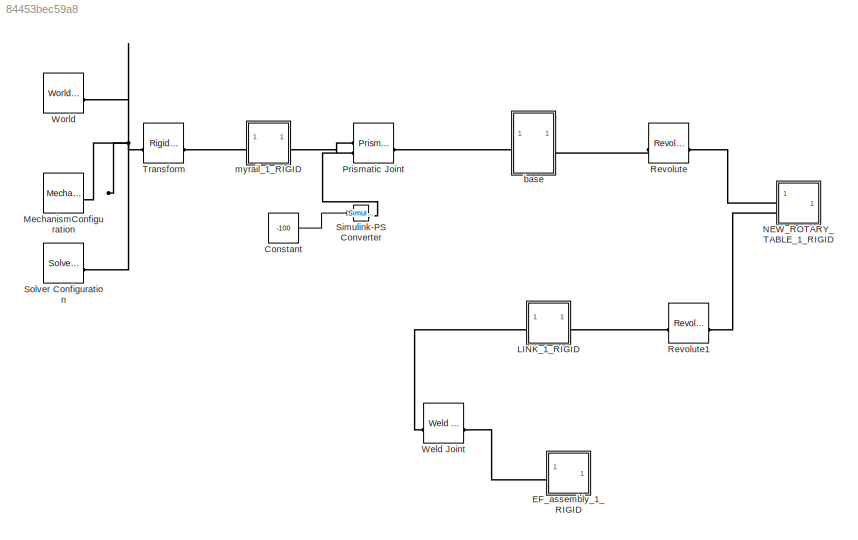
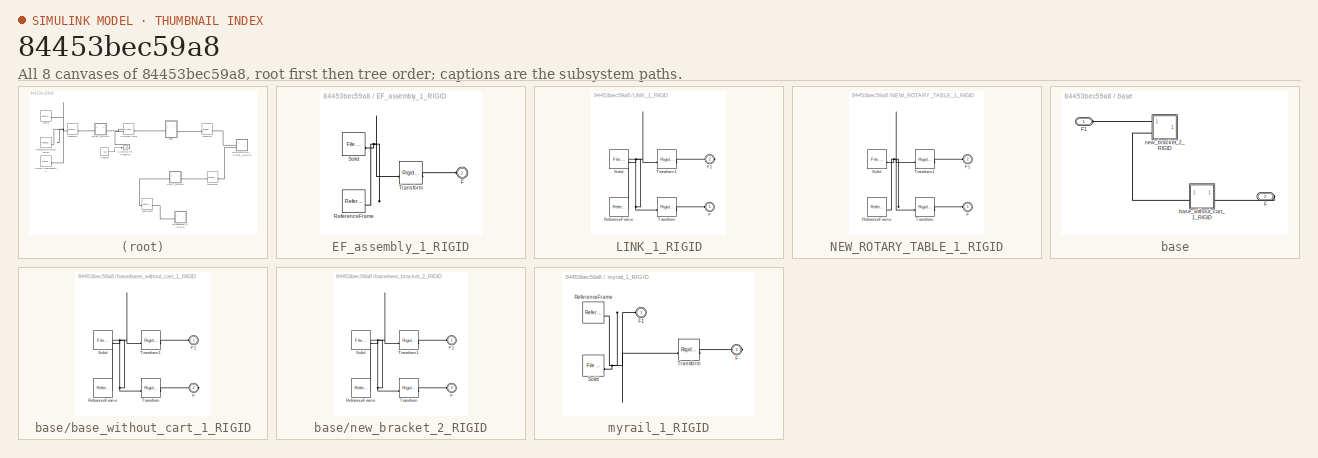
[diagram: thumbnail index - all 8 canvases of the model, root first then tree order]
MODEL slx_84453bec59a8
KIND model
CONFIG AbsTol = auto
CONFIG EnableMultiTasking = off
CONFIG FixedStep = auto
CONFIG MaxStep = auto
CONFIG MinStep = auto
CONFIG RelTol = 1e-3
CONFIG SampleTimeConstraint = Unconstrained
CONFIG SolverName = VariableStepAuto
CONFIG StartTime = 0.0
CONFIG StopTime = 10.0
WORKSPACE source: external: MATLAB File  (data not in archive)
BLOCK [Constant] Constant
  Value = -100
BLOCK [SubSystem] EF_assembly_1_RIGID
BLOCK [PMIOPort] EF_assembly_1_RIGID/F
  Side = Left
BLOCK [Reference] EF_assembly_1_RIGID/ReferenceFrame  REF=sm_lib/Frames and
Transforms/Reference
Frame
  SourceBlock = sm_lib/Frames and\nTransforms/Reference\nFrame
  SourceType = Reference\nFrame
BLOCK [Reference] EF_assembly_1_RIGID/Solid  REF=sm_lib/Body Elements/File Solid
  SourceBlock = sm_lib/Body Elements/File Solid
  SourceType = File Solid
BLOCK [Reference] EF_assembly_1_RIGID/Transform  REF=sm_lib/Frames and
Transforms/Rigid
Transform
  SourceBlock = sm_lib/Frames and\nTransforms/Rigid\nTransform
  SourceType = Rigid\nTransform
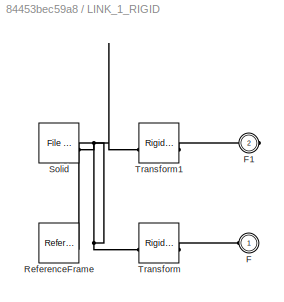
BLOCK [SubSystem] LINK_1_RIGID
BLOCK [PMIOPort] LINK_1_RIGID/F
  Side = Left
BLOCK [PMIOPort] LINK_1_RIGID/F1
  Port = 2
  Side = Right
BLOCK [Reference] LINK_1_RIGID/ReferenceFrame  REF=sm_lib/Frames and
Transforms/Reference
Frame
  SourceBlock = sm_lib/Frames and\nTransforms/Reference\nFrame
  SourceType = Reference\nFrame
BLOCK [Reference] LINK_1_RIGID/Solid  REF=sm_lib/Body Elements/File Solid
  SourceBlock = sm_lib/Body Elements/File Solid
  SourceType = File Solid
BLOCK [Reference] LINK_1_RIGID/Transform  REF=sm_lib/Frames and
Transforms/Rigid
Transform
  SourceBlock = sm_lib/Frames and\nTransforms/Rigid\nTransform
  SourceType = Rigid\nTransform
BLOCK [Reference] LINK_1_RIGID/Transform1  REF=sm_lib/Frames and
Transforms/Rigid
Transform
  SourceBlock = sm_lib/Frames and\nTransforms/Rigid\nTransform
  SourceType = Rigid\nTransform
BLOCK [Reference] MechanismConfiguration  REF=sm_lib/Utilities/Mechanism
Configuration
  SourceBlock = sm_lib/Utilities/Mechanism\nConfiguration
  SourceType = Mechanism\nConfiguration
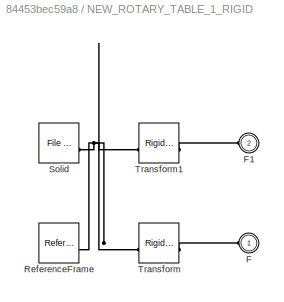
BLOCK [SubSystem] NEW_ROTARY_TABLE_1_RIGID
BLOCK [PMIOPort] NEW_ROTARY_TABLE_1_RIGID/F
  Side = Left
BLOCK [PMIOPort] NEW_ROTARY_TABLE_1_RIGID/F1
  Port = 2
  Side = Left
BLOCK [Reference] NEW_ROTARY_TABLE_1_RIGID/ReferenceFrame  REF=sm_lib/Frames and
Transforms/Reference
Frame
  SourceBlock = sm_lib/Frames and\nTransforms/Reference\nFrame
  SourceType = Reference\nFrame
BLOCK [Reference] NEW_ROTARY_TABLE_1_RIGID/Solid  REF=sm_lib/Body Elements/File Solid
  SourceBlock = sm_lib/Body Elements/File Solid
  SourceType = File Solid
BLOCK [Reference] NEW_ROTARY_TABLE_1_RIGID/Transform  REF=sm_lib/Frames and
Transforms/Rigid
Transform
  SourceBlock = sm_lib/Frames and\nTransforms/Rigid\nTransform
  SourceType = Rigid\nTransform
BLOCK [Reference] NEW_ROTARY_TABLE_1_RIGID/Transform1  REF=sm_lib/Frames and
Transforms/Rigid
Transform
  SourceBlock = sm_lib/Frames and\nTransforms/Rigid\nTransform
  SourceType = Rigid\nTransform
BLOCK [Reference] Prismatic Joint  REF=sm_lib/Joints/Prismatic
Joint
  SourceBlock = sm_lib/Joints/Prismatic\nJoint
  SourceType = Prismatic\nJoint
BLOCK [Reference] Revolute  REF=sm_lib/Joints/Revolute Joint
  SourceBlock = sm_lib/Joints/Revolute Joint
  SourceType = Revolute Joint
BLOCK [Reference] Revolute1  REF=sm_lib/Joints/Revolute Joint
  SourceBlock = sm_lib/Joints/Revolute Joint
  SourceType = Revolute Joint
BLOCK [Reference] Simulink-PS Converter  REF=nesl_utility/Simulink-PS
Converter
  SourceBlock = nesl_utility/Simulink-PS\nConverter
  SourceType = Simulink-PS\nConverter
BLOCK [Reference] Solver Configuration  REF=nesl_utility/Solver
Configuration
  SourceBlock = nesl_utility/Solver\nConfiguration
  SourceType = Solver\nConfiguration
BLOCK [Reference] Transform  REF=sm_lib/Frames and
Transforms/Rigid
Transform
  SourceBlock = sm_lib/Frames and\nTransforms/Rigid\nTransform
  SourceType = Rigid\nTransform
BLOCK [Reference] Weld Joint  REF=sm_lib/Joints/Weld Joint
  SourceBlock = sm_lib/Joints/Weld Joint
  SourceType = Weld Joint
BLOCK [Reference] World  REF=sm_lib/Frames and
Transforms/World Frame
  SourceBlock = sm_lib/Frames and\nTransforms/World Frame
  SourceType = World Frame
BLOCK [SubSystem] base
BLOCK [PMIOPort] base/F
  Port = 2
  Side = Right
BLOCK [PMIOPort] base/F1
  Side = Left
BLOCK [SubSystem] base/base_without_cart_1_RIGID
BLOCK [PMIOPort] base/base_without_cart_1_RIGID/F
  Port = 2
  Side = Right
BLOCK [PMIOPort] base/base_without_cart_1_RIGID/F1
  Side = Left
BLOCK [Reference] base/base_without_cart_1_RIGID/ReferenceFrame  REF=sm_lib/Frames and
Transforms/Reference
Frame
  SourceBlock = sm_lib/Frames and\nTransforms/Reference\nFrame
  SourceType = Reference\nFrame
BLOCK [Reference] base/base_without_cart_1_RIGID/Solid  REF=sm_lib/Body Elements/File Solid
  SourceBlock = sm_lib/Body Elements/File Solid
  SourceType = File Solid
BLOCK [Reference] base/base_without_cart_1_RIGID/Transform  REF=sm_lib/Frames and
Transforms/Rigid
Transform
  SourceBlock = sm_lib/Frames and\nTransforms/Rigid\nTransform
  SourceType = Rigid\nTransform
BLOCK [Reference] base/base_without_cart_1_RIGID/Transform1  REF=sm_lib/Frames and
Transforms/Rigid
Transform
  SourceBlock = sm_lib/Frames and\nTransforms/Rigid\nTransform
  SourceType = Rigid\nTransform
BLOCK [SubSystem] base/new_bracket_2_RIGID
BLOCK [PMIOPort] base/new_bracket_2_RIGID/F
  Port = 2
  Side = Left
BLOCK [PMIOPort] base/new_bracket_2_RIGID/F1
  Side = Left
BLOCK [Reference] base/new_bracket_2_RIGID/ReferenceFrame  REF=sm_lib/Frames and
Transforms/Reference
Frame
  SourceBlock = sm_lib/Frames and\nTransforms/Reference\nFrame
  SourceType = Reference\nFrame
BLOCK [Reference] base/new_bracket_2_RIGID/Solid  REF=sm_lib/Body Elements/File Solid
  SourceBlock = sm_lib/Body Elements/File Solid
  SourceType = File Solid
BLOCK [Reference] base/new_bracket_2_RIGID/Transform  REF=sm_lib/Frames and
Transforms/Rigid
Transform
  SourceBlock = sm_lib/Frames and\nTransforms/Rigid\nTransform
  SourceType = Rigid\nTransform
BLOCK [Reference] base/new_bracket_2_RIGID/Transform1  REF=sm_lib/Frames and
Transforms/Rigid
Transform
  SourceBlock = sm_lib/Frames and\nTransforms/Rigid\nTransform
  SourceType = Rigid\nTransform
BLOCK [SubSystem] myrail_1_RIGID
BLOCK [PMIOPort] myrail_1_RIGID/F
  Port = 2
  Side = Right
BLOCK [PMIOPort] myrail_1_RIGID/F1
  Side = Left
BLOCK [Reference] myrail_1_RIGID/ReferenceFrame  REF=sm_lib/Frames and
Transforms/Reference
Frame
  SourceBlock = sm_lib/Frames and\nTransforms/Reference\nFrame
  SourceType = Reference\nFrame
BLOCK [Reference] myrail_1_RIGID/Solid  REF=sm_lib/Body Elements/File Solid
  SourceBlock = sm_lib/Body Elements/File Solid
  SourceType = File Solid
BLOCK [Reference] myrail_1_RIGID/Transform  REF=sm_lib/Frames and
Transforms/Rigid
Transform
  SourceBlock = sm_lib/Frames and\nTransforms/Rigid\nTransform
  SourceType = Rigid\nTransform
LINE Constant:1 -> Simulink-PS Converter:1
PLINE EF_assembly_1_RIGID/F:RConn1 -- EF_assembly_1_RIGID/Transform:RConn1
PNET net1: EF_assembly_1_RIGID/ReferenceFrame:RConn1 -- EF_assembly_1_RIGID/Solid:RConn1 -- EF_assembly_1_RIGID/Transform:LConn1
PLINE EF_assembly_1_RIGID:LConn1 -- Weld Joint:RConn1
PLINE LINK_1_RIGID/F1:RConn1 -- LINK_1_RIGID/Transform1:RConn1
PLINE LINK_1_RIGID/F:RConn1 -- LINK_1_RIGID/Transform:RConn1
PNET net2: LINK_1_RIGID/ReferenceFrame:RConn1 -- LINK_1_RIGID/Solid:RConn1 -- LINK_1_RIGID/Transform1:LConn1 -- LINK_1_RIGID/Transform:LConn1
PLINE LINK_1_RIGID:LConn1 -- Weld Joint:LConn1
PLINE LINK_1_RIGID:RConn1 -- Revolute1:LConn1
PNET net3: MechanismConfiguration:RConn1 -- Solver Configuration:RConn1 -- Transform:LConn1 -- World:RConn1
PLINE NEW_ROTARY_TABLE_1_RIGID/F1:RConn1 -- NEW_ROTARY_TABLE_1_RIGID/Transform1:RConn1
PLINE NEW_ROTARY_TABLE_1_RIGID/F:RConn1 -- NEW_ROTARY_TABLE_1_RIGID/Transform:RConn1
PNET net4: NEW_ROTARY_TABLE_1_RIGID/ReferenceFrame:RConn1 -- NEW_ROTARY_TABLE_1_RIGID/Solid:RConn1 -- NEW_ROTARY_TABLE_1_RIGID/Transform1:LConn1 -- NEW_ROTARY_TABLE_1_RIGID/Transform:LConn1
PLINE NEW_ROTARY_TABLE_1_RIGID:LConn1 -- Revolute:RConn1
PLINE NEW_ROTARY_TABLE_1_RIGID:LConn2 -- Revolute1:RConn1
PLINE Prismatic Joint:LConn1 -- myrail_1_RIGID:RConn1
PLINE Prismatic Joint:LConn2 -- Simulink-PS Converter:RConn1
PLINE Prismatic Joint:RConn1 -- base:LConn1
PLINE Revolute:LConn1 -- base:RConn1
PLINE Transform:RConn1 -- myrail_1_RIGID:LConn1
PLINE base/F1:RConn1 -- base/new_bracket_2_RIGID:LConn1
PLINE base/F:RConn1 -- base/base_without_cart_1_RIGID:RConn1
PLINE base/base_without_cart_1_RIGID/F1:RConn1 -- base/base_without_cart_1_RIGID/Transform1:RConn1
PLINE base/base_without_cart_1_RIGID/F:RConn1 -- base/base_without_cart_1_RIGID/Transform:RConn1
PNET net5: base/base_without_cart_1_RIGID/ReferenceFrame:RConn1 -- base/base_without_cart_1_RIGID/Solid:RConn1 -- base/base_without_cart_1_RIGID/Transform1:LConn1 -- base/base_without_cart_1_RIGID/Transform:LConn1
PLINE base/base_without_cart_1_RIGID:LConn1 -- base/new_bracket_2_RIGID:LConn2
PLINE base/new_bracket_2_RIGID/F1:RConn1 -- base/new_bracket_2_RIGID/Transform1:RConn1
PLINE base/new_bracket_2_RIGID/F:RConn1 -- base/new_bracket_2_RIGID/Transform:RConn1
PNET net6: base/new_bracket_2_RIGID/ReferenceFrame:RConn1 -- base/new_bracket_2_RIGID/Solid:RConn1 -- base/new_bracket_2_RIGID/Transform1:LConn1 -- base/new_bracket_2_RIGID/Transform:LConn1
PNET net7: myrail_1_RIGID/F1:RConn1 -- myrail_1_RIGID/ReferenceFrame:RConn1 -- myrail_1_RIGID/Solid:RConn1 -- myrail_1_RIGID/Transform:LConn1
PLINE myrail_1_RIGID/F:RConn1 -- myrail_1_RIGID/Transform:RConn1
note: PNET lines group multi-terminal physical nets as a canonical sorted terminal list (undirected conserving connections); 2-terminal nets keep the pairwise PLINE form
